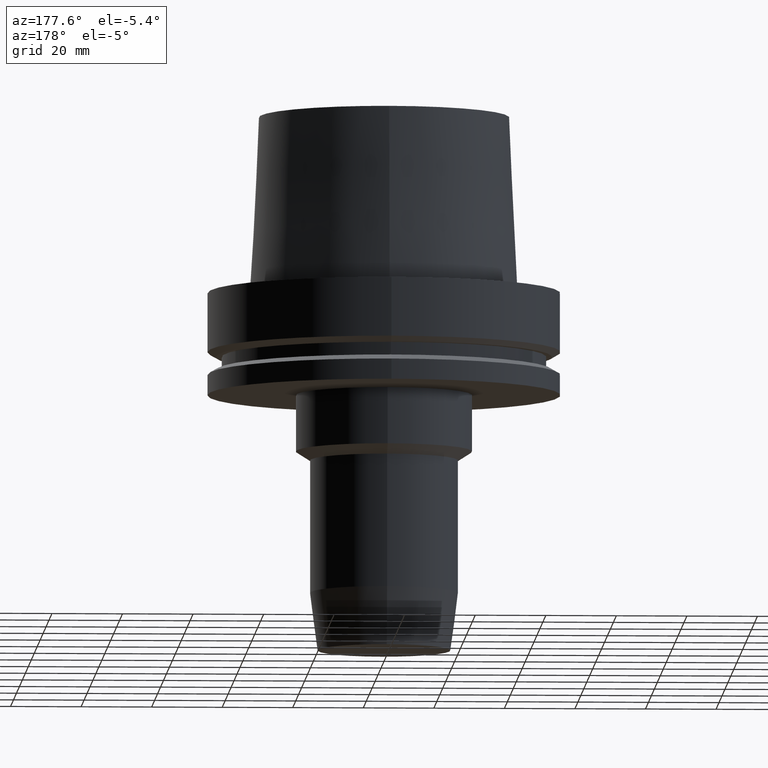
[diagram: clean part render]
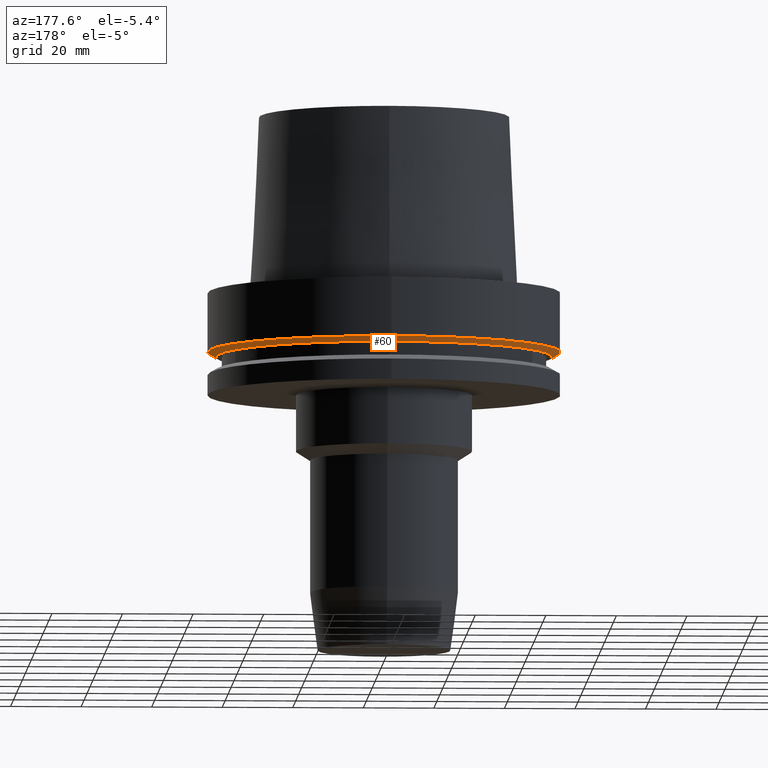
[diagram: same view with one face highlighted and labeled with its STEP entity id]
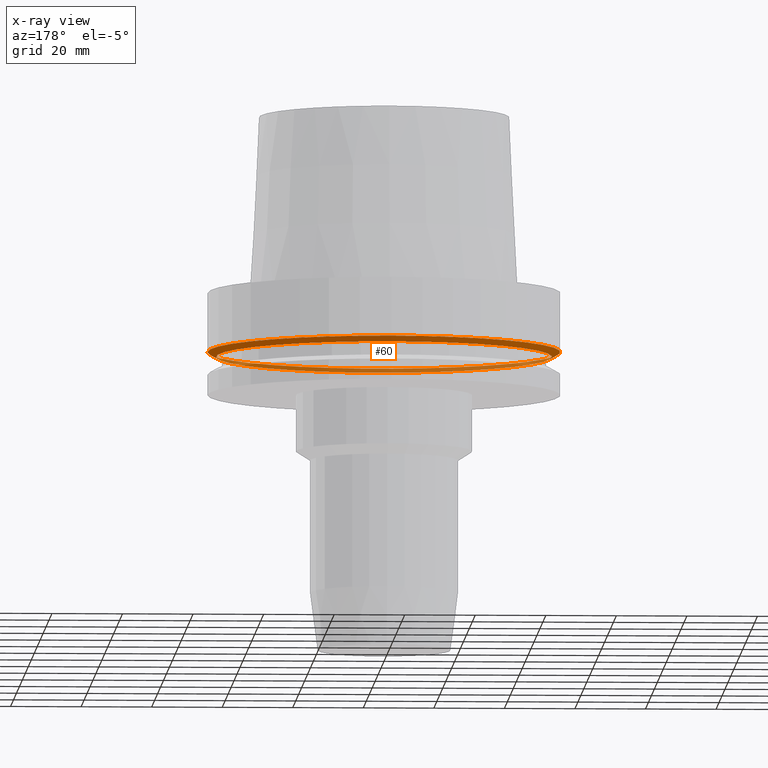
[diagram: x-ray of the same camera — body ghosted, the highlighted face saturated]
A machine part, auxiliary view. The second image highlights one B-rep face of the part: STEP entity #60.
The next image is the same camera in x-ray: the body ghosted, the highlighted face saturated — about 36% of this face is hidden behind the body in this view.
In plain terms, the highlighted conical surface has half-angle 60 deg.
Its self-contained STEP definition (entity closure, byte-faithful):
#60=ADVANCED_FACE('Unnamed[1]',(#159,#160),#161,.T.);
#106=EDGE_CURVE('Unnamed[1]',#231,#231,#232,.T.);
#130=EDGE_CURVE('Unnamed[1]',#268,#268,#269,.T.);
#159=FACE_BOUND('',#293,.T.);
#160=FACE_BOUND('',#294,.T.);
#161=CONICAL_SURFACE('',#295,48.81129763,1.04719755328238);
#231=VERTEX_POINT('',#382);
#232=CIRCLE('',#383,50.0);
#268=VERTEX_POINT('',#429);
#269=CIRCLE('',#430,47.62259526);
#293=EDGE_LOOP('',(#449));
#294=EDGE_LOOP('',(#450));
#295=AXIS2_PLACEMENT_3D('',#451,#452,#453);
#382=CARTESIAN_POINT('',(1.0257889421431E-015,50.0,-16.75240474));
#383=AXIS2_PLACEMENT_3D('',#529,#530,#531);
#429=CARTESIAN_POINT('',(1.10983616172729E-015,47.62259526,-18.125));
#430=AXIS2_PLACEMENT_3D('',#570,#571,#572);
#449=ORIENTED_EDGE('',*,*,#130,.F.);
#450=ORIENTED_EDGE('',*,*,#106,.T.);
#451=CARTESIAN_POINT('',(1.06781255193519E-015,2.13562510387038E-015,-17.43870237));
#452=DIRECTION('',(-6.12323399573677E-017,-1.22464679914735E-016,1.0));
#453=DIRECTION('',(-1.23259516440783E-032,1.0,1.22464679914735E-016));
#529=CARTESIAN_POINT('',(1.0257889421431E-015,2.05157788428619E-015,-16.75240474));
#530=DIRECTION('',(6.12323399573677E-017,1.22464679914735E-016,-1.0));
#531=DIRECTION('',(-1.23259516440783E-032,1.0,1.22464679914735E-016));
#570=CARTESIAN_POINT('',(1.10983616172729E-015,2.21967232345458E-015,-18.125));
#571=DIRECTION('',(6.12323399573676E-017,1.22464679914735E-016,-1.0));
#572=DIRECTION('',(-1.23259516440783E-032,1.0,1.22464679914735E-016));